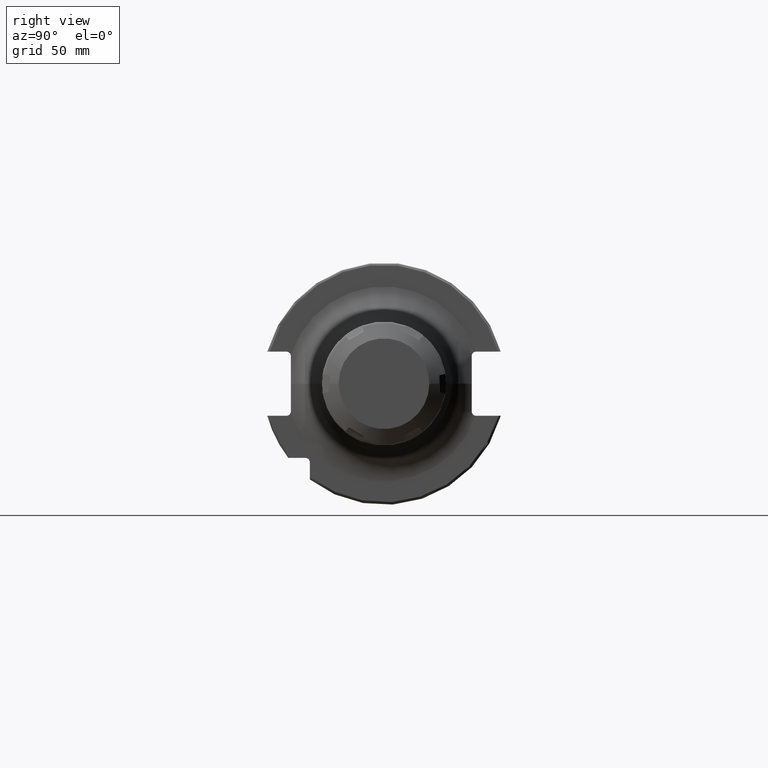
[diagram: clean part render]
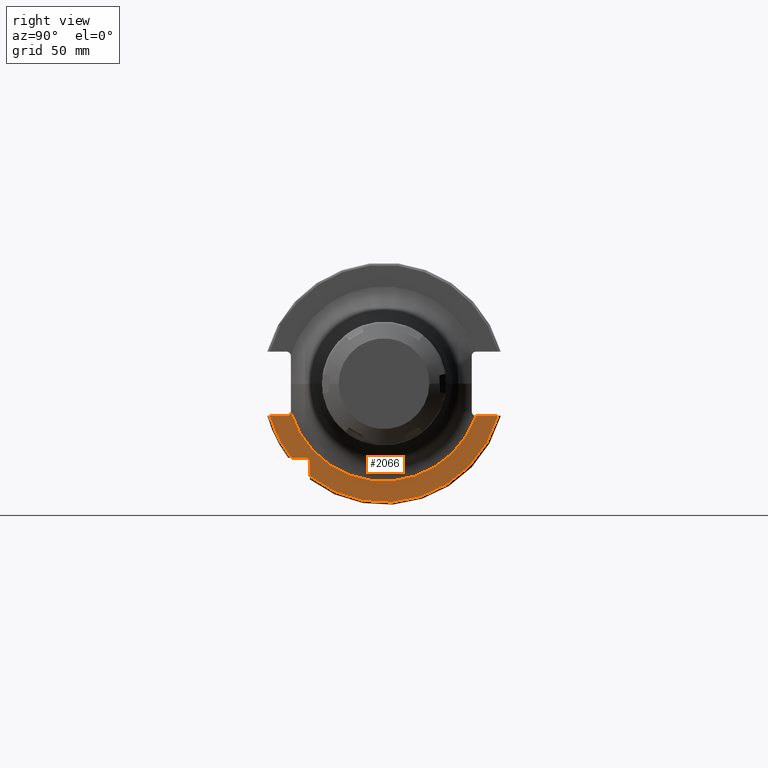
[diagram: same view with one face highlighted and labeled with its STEP entity id]
A machine part, right view. The second image highlights one B-rep face of the part: STEP entity #2066.
In plain terms, the highlighted planar face has unit normal (1, 0, 0).
Its self-contained STEP definition (entity closure, byte-faithful):
#292=CARTESIAN_POINT('',(1.905E1,0.E0,0.E0));
#293=DIRECTION('',(1.E0,0.E0,0.E0));
#294=DIRECTION('',(0.E0,-9.565519620833E-1,-2.915619039495E-1));
#295=AXIS2_PLACEMENT_3D('',#292,#293,#294);
#297=DIRECTION('',(-1.355498382254E-6,-9.999999999984E-1,1.127522158826E-6));
#298=VECTOR('',#297,8.913272983950E0);
#299=CARTESIAN_POINT('',(1.905E1,4.596149373389E1,-1.29E1));
#300=LINE('',#299,#298);
#301=DIRECTION('',(0.E0,0.E0,1.E0));
#302=VECTOR('',#301,5.653810627237E0);
#303=CARTESIAN_POINT('',(1.905E1,-2.985E1,-3.725381062724E1));
#304=LINE('',#303,#302);
#305=DIRECTION('',(0.E0,-1.E0,0.E0));
#306=VECTOR('',#305,5.653810627237E0);
#307=CARTESIAN_POINT('',(1.905E1,-3.16E1,-2.985E1));
#308=LINE('',#307,#306);
#309=DIRECTION('',(0.E0,1.E0,0.E0));
#310=VECTOR('',#309,6.711493733886E0);
#311=CARTESIAN_POINT('',(1.905E1,-4.596149373389E1,-1.29E1));
#312=LINE('',#311,#310);
#335=CARTESIAN_POINT('',(1.905E1,4.596149373389E1,-1.29E1));
#347=CARTESIAN_POINT('',(1.905E1,0.E0,0.E0));
#348=DIRECTION('',(-1.E0,0.E0,0.E0));
#349=DIRECTION('',(0.E0,9.627964123359E-1,-2.702278083268E-1));
#350=AXIS2_PLACEMENT_3D('',#347,#348,#349);
#352=CARTESIAN_POINT('',(1.905E1,-4.596149373389E1,-1.29E1));
#363=CARTESIAN_POINT('',(1.905E1,0.E0,0.E0));
#364=DIRECTION('',(-1.E0,0.E0,0.E0));
#365=DIRECTION('',(0.E0,-7.803888060170E-1,-6.252945797329E-1));
#366=AXIS2_PLACEMENT_3D('',#363,#364,#365);
#377=CARTESIAN_POINT('',(1.905E1,-3.725381062724E1,-2.985E1));
#498=CARTESIAN_POINT('',(1.905E1,-3.16E1,-3.16E1));
#499=DIRECTION('',(-1.E0,0.E0,0.E0));
#500=DIRECTION('',(0.E0,0.E0,1.E0));
#501=AXIS2_PLACEMENT_3D('',#498,#499,#500);
#960=CARTESIAN_POINT('',(1.905E1,-3.925E1,-1.115E1));
#961=DIRECTION('',(-1.E0,0.E0,0.E0));
#962=DIRECTION('',(0.E0,9.864190754469E-1,-1.642480063641E-1));
#963=AXIS2_PLACEMENT_3D('',#960,#961,#962);
#1533=VERTEX_POINT('',#335);
#1534=VERTEX_POINT('',#352);
#1553=CARTESIAN_POINT('',(1.905E1,-2.985E1,-3.725381062724E1));
#1554=VERTEX_POINT('',#1553);
#1561=CARTESIAN_POINT('',(1.905E1,-3.925E1,-1.29E1));
#1563=VERTEX_POINT('',#1561);
#1581=CARTESIAN_POINT('',(1.905E1,-3.16E1,-2.985E1));
#1582=CARTESIAN_POINT('',(1.905E1,-2.985E1,-3.16E1));
#1583=VERTEX_POINT('',#1581);
#1584=VERTEX_POINT('',#1582);
#1628=CARTESIAN_POINT('',(1.905E1,-3.752377485623E1,-1.143743745675E1));
#1629=CARTESIAN_POINT('',(1.905E1,3.704643815871E1,-1.290000289886E1));
#1630=VERTEX_POINT('',#1628);
#1631=VERTEX_POINT('',#1629);
#1659=VERTEX_POINT('',#377);
#2043=CARTESIAN_POINT('',(1.905E1,0.E0,0.E0));
#2044=DIRECTION('',(1.E0,0.E0,0.E0));
#2045=DIRECTION('',(0.E0,-1.E0,0.E0));
#2046=AXIS2_PLACEMENT_3D('',#2043,#2044,#2045);
#2047=PLANE('',#2046);
#2048=ORIENTED_EDGE('',*,*,#2029,.T.);
#2049=ORIENTED_EDGE('',*,*,#1876,.F.);
#2051=ORIENTED_EDGE('',*,*,#2050,.T.);
#2053=ORIENTED_EDGE('',*,*,#2052,.T.);
#2055=ORIENTED_EDGE('',*,*,#2054,.F.);
#2057=ORIENTED_EDGE('',*,*,#2056,.T.);
#2059=ORIENTED_EDGE('',*,*,#2058,.T.);
#2061=ORIENTED_EDGE('',*,*,#2060,.T.);
#2063=ORIENTED_EDGE('',*,*,#2062,.F.);
#2064=EDGE_LOOP('',(#2048,#2049,#2051,#2053,#2055,#2057,#2059,#2061,#2063));
#2065=FACE_OUTER_BOUND('',#2064,.F.);
#2066=ADVANCED_FACE('',(#2065),#2047,.T.);
#296=CIRCLE('',#295,3.922816150469E1);
#351=CIRCLE('',#350,4.77375E1);
#367=CIRCLE('',#366,4.77375E1);
#502=CIRCLE('',#501,1.75E0);
#964=CIRCLE('',#963,1.75E0);
#1876=EDGE_CURVE('',#1533,#1631,#300,.T.);
#2029=EDGE_CURVE('',#1630,#1631,#296,.T.);
#2050=EDGE_CURVE('',#1533,#1554,#351,.T.);
#2052=EDGE_CURVE('',#1554,#1584,#304,.T.);
#2054=EDGE_CURVE('',#1583,#1584,#502,.T.);
#2056=EDGE_CURVE('',#1583,#1659,#308,.T.);
#2058=EDGE_CURVE('',#1659,#1534,#367,.T.);
#2060=EDGE_CURVE('',#1534,#1563,#312,.T.);
#2062=EDGE_CURVE('',#1630,#1563,#964,.T.);